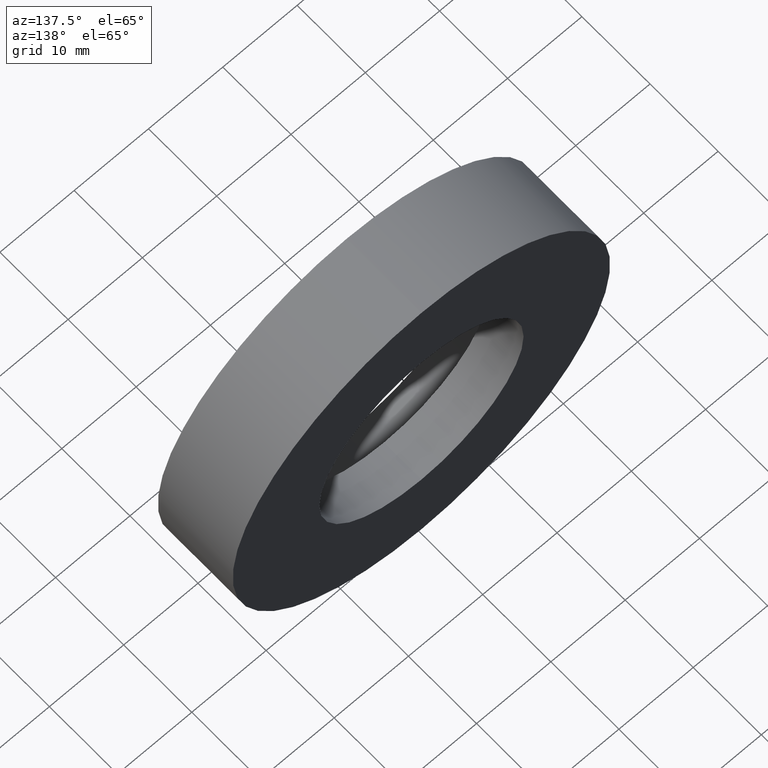
[diagram: clean part render]
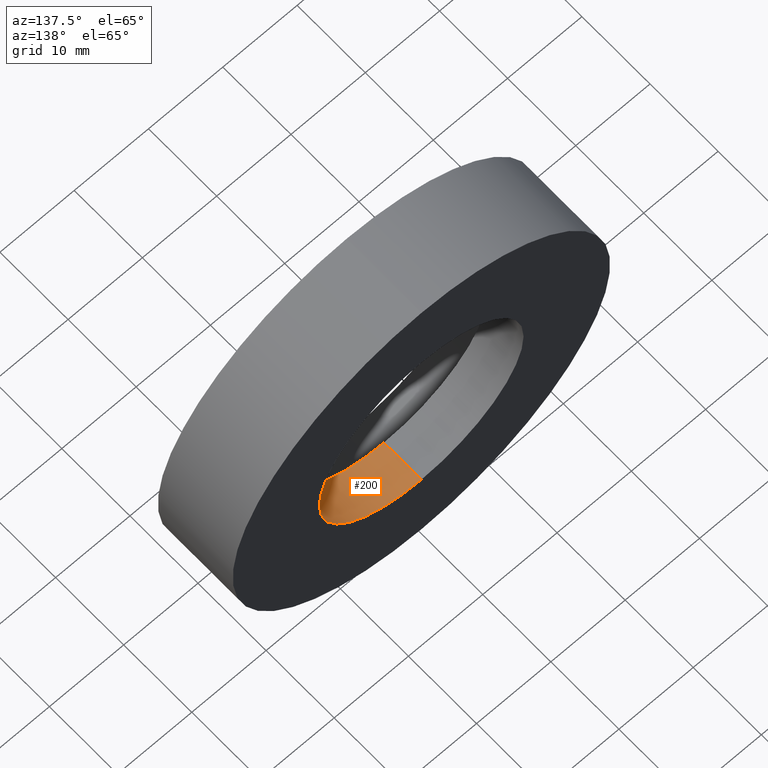
[diagram: same view with one face highlighted and labeled with its STEP entity id]
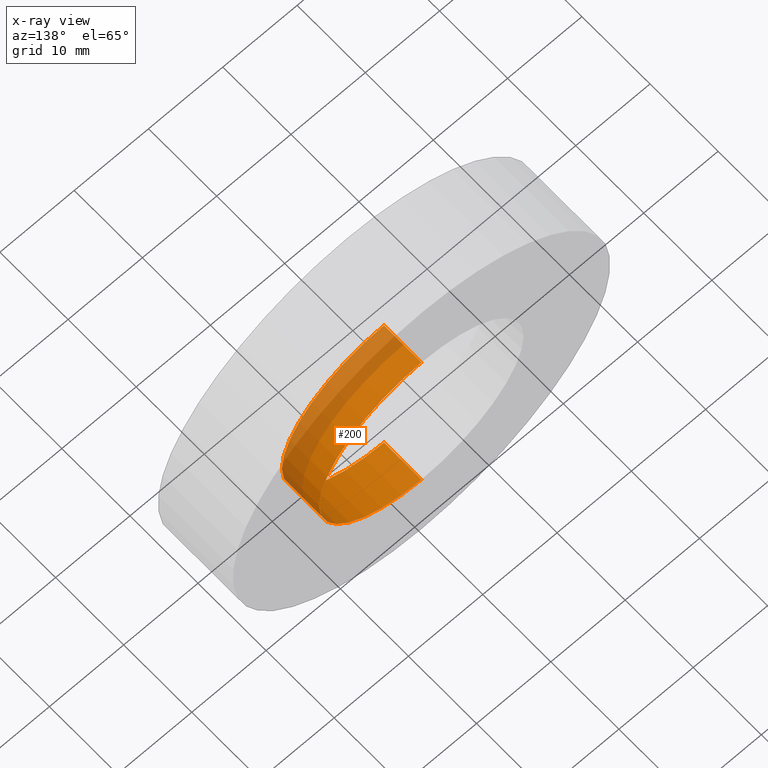
[diagram: x-ray of the same camera — body ghosted, the highlighted face saturated]
A machine part, auxiliary view. The second image highlights one B-rep face of the part: STEP entity #200.
The next image is the same camera in x-ray: the body ghosted, the highlighted face saturated — about 36% of this face is hidden behind the body in this view.
In plain terms, the highlighted cylindrical surface (partial cylindrical patch) has radius 13.75 mm, axis along (-0, 1, -0).
Its self-contained STEP definition (entity closure, byte-faithful):
#18 = VERTEX_POINT ( 'NONE', #388 ) ;
#23 = DIRECTION ( 'NONE',  ( 0.0000000000000000000, 0.0000000000000000000, 1.000000000000000000 ) ) ;
#33 = EDGE_CURVE ( 'NONE', #169, #241, #72, .T. ) ;
#41 = CARTESIAN_POINT ( 'NONE',  ( 1.683889348827611400E-015, 60.02082041425541100, -13.75000000000000500 ) ) ;
#51 = EDGE_CURVE ( 'NONE', #100, #169, #417, .T. ) ;
#72 = LINE ( 'NONE', #41, #366 ) ;
#78 = AXIS2_PLACEMENT_3D ( 'NONE', #195, #260, #84 ) ;
#84 = DIRECTION ( 'NONE',  ( 0.0000000000000000000, 0.0000000000000000000, 1.000000000000000000 ) ) ;
#86 = EDGE_LOOP ( 'NONE', ( #197, #291, #386, #212 ) ) ;
#88 = CARTESIAN_POINT ( 'NONE',  ( 1.683889348827611800E-015, 10.99999999999999600, -13.75000000000000900 ) ) ;
#94 = DIRECTION ( 'NONE',  ( 0.0000000000000000000, 0.0000000000000000000, 1.000000000000000000 ) ) ;
#95 = EDGE_CURVE ( 'NONE', #100, #18, #162, .T. ) ;
#100 = VERTEX_POINT ( 'NONE', #206 ) ;
#116 = DIRECTION ( 'NONE',  ( -0.0000000000000000000, 1.000000000000000000, -0.0000000000000000000 ) ) ;
#120 = CARTESIAN_POINT ( 'NONE',  ( 0.0000000000000000000, 10.99999999999999600, 0.0000000000000000000 ) ) ;
#123 = EDGE_CURVE ( 'NONE', #18, #241, #419, .T. ) ;
#153 = CARTESIAN_POINT ( 'NONE',  ( 1.683889348827611400E-015, 5.499999999999998200, -13.75000000000000500 ) ) ;
#160 = DIRECTION ( 'NONE',  ( -0.0000000000000000000, 1.000000000000000000, -0.0000000000000000000 ) ) ;
#162 = LINE ( 'NONE', #254, #411 ) ;
#169 = VERTEX_POINT ( 'NONE', #153 ) ;
#188 = AXIS2_PLACEMENT_3D ( 'NONE', #289, #160, #23 ) ;
#195 = CARTESIAN_POINT ( 'NONE',  ( 0.0000000000000000000, 60.02082041425541100, 0.0000000000000000000 ) ) ;
#197 = ORIENTED_EDGE ( 'NONE', *, *, #33, .F. ) ;
#200 = ADVANCED_FACE ( 'NONE', ( #319 ), #243, .F. ) ;
#206 = CARTESIAN_POINT ( 'NONE',  ( 0.0000000000000000000, 5.499999999999998200, 13.75000000000000500 ) ) ;
#212 = ORIENTED_EDGE ( 'NONE', *, *, #123, .T. ) ;
#241 = VERTEX_POINT ( 'NONE', #88 ) ;
#243 = CYLINDRICAL_SURFACE ( 'NONE', #78, 13.75000000000000500 ) ;
#254 = CARTESIAN_POINT ( 'NONE',  ( 0.0000000000000000000, 60.02082041425541100, 13.75000000000000500 ) ) ;
#260 = DIRECTION ( 'NONE',  ( -0.0000000000000000000, 1.000000000000000000, -0.0000000000000000000 ) ) ;
#264 = DIRECTION ( 'NONE',  ( -0.0000000000000000000, 1.000000000000000000, -0.0000000000000000000 ) ) ;
#287 = DIRECTION ( 'NONE',  ( -0.0000000000000000000, 1.000000000000000000, -0.0000000000000000000 ) ) ;
#289 = CARTESIAN_POINT ( 'NONE',  ( 0.0000000000000000000, 5.499999999999998200, 0.0000000000000000000 ) ) ;
#291 = ORIENTED_EDGE ( 'NONE', *, *, #51, .F. ) ;
#305 = AXIS2_PLACEMENT_3D ( 'NONE', #120, #116, #94 ) ;
#319 = FACE_OUTER_BOUND ( 'NONE', #86, .T. ) ;
#366 = VECTOR ( 'NONE', #287, 1000.000000000000000 ) ;
#386 = ORIENTED_EDGE ( 'NONE', *, *, #95, .T. ) ;
#388 = CARTESIAN_POINT ( 'NONE',  ( 0.0000000000000000000, 10.99999999999999600, 13.75000000000000700 ) ) ;
#411 = VECTOR ( 'NONE', #264, 1000.000000000000000 ) ;
#417 = CIRCLE ( 'NONE', #188, 13.75000000000000500 ) ;
#419 = CIRCLE ( 'NONE', #305, 13.75000000000000700 ) ;